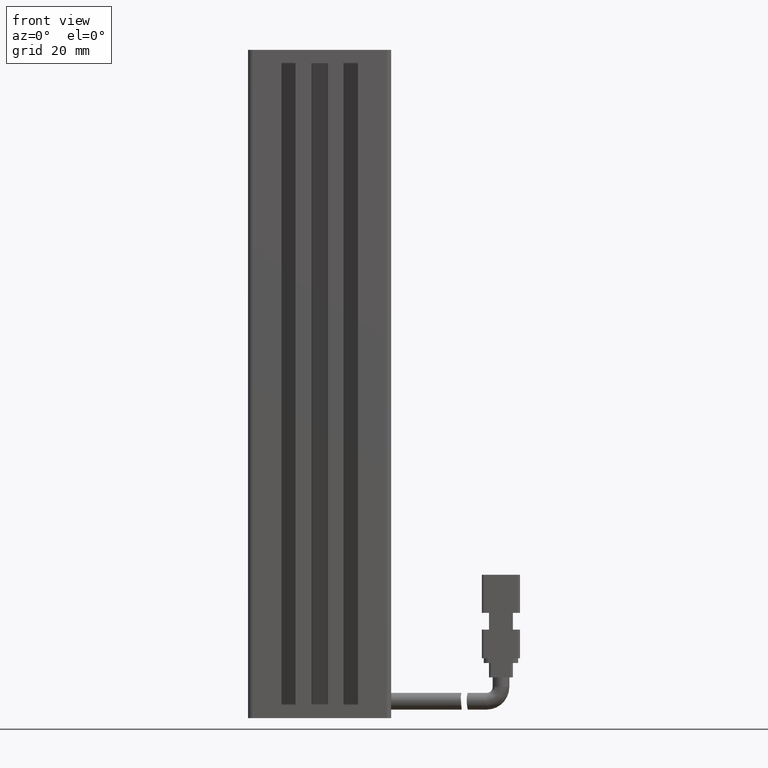
[diagram: clean part render]
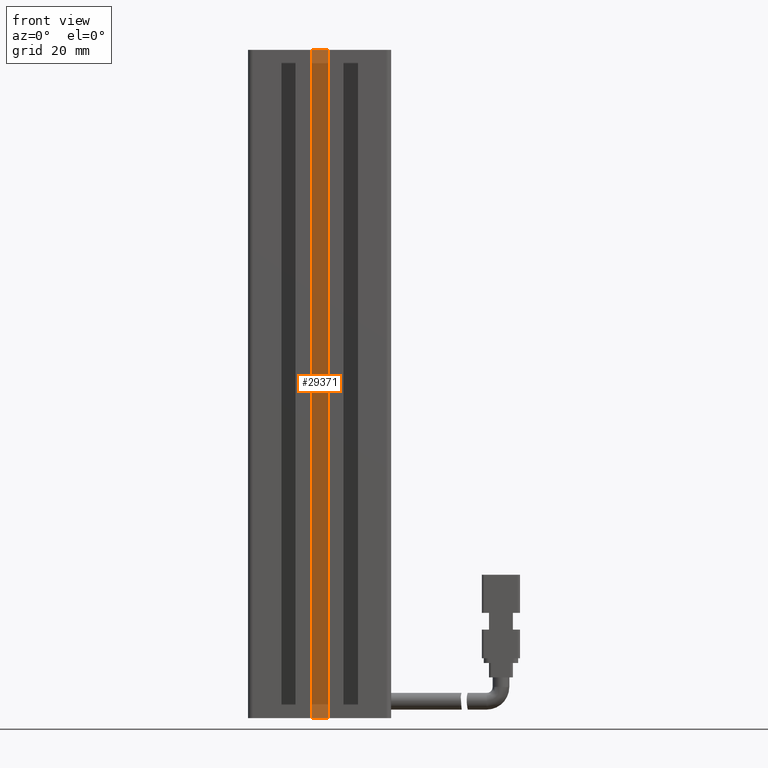
[diagram: same view with one face highlighted and labeled with its STEP entity id]
A machine part, front view. The second image highlights one B-rep face of the part: STEP entity #29371.
In plain terms, the highlighted planar face has unit normal (0, 1, 0).
Its self-contained STEP definition (entity closure, byte-faithful):
#233 = LINE ( 'NONE', #5409, #30865 ) ;
#376 = EDGE_CURVE ( 'NONE', #23044, #26277, #31807, .T. ) ;
#747 = CARTESIAN_POINT ( 'NONE',  ( 39.17537974683542500, 15.49594479660386700, -45.00000000000000000 ) ) ;
#762 = FACE_OUTER_BOUND ( 'NONE', #14723, .T. ) ;
#2207 = EDGE_CURVE ( 'NONE', #23044, #22818, #23601, .T. ) ;
#2642 = CARTESIAN_POINT ( 'NONE',  ( 42.67537974683542500, 15.49594479660386700, -45.00000000000000000 ) ) ;
#3263 = ORIENTED_EDGE ( 'NONE', *, *, #2207, .T. ) ;
#5409 = CARTESIAN_POINT ( 'NONE',  ( 40.92537974683542500, 15.49594479660386700, -45.00000000000000000 ) ) ;
#6335 = VECTOR ( 'NONE', #30303, 1000.000000000000000 ) ;
#8083 = EDGE_CURVE ( 'NONE', #26277, #15431, #233, .T. ) ;
#8577 = ORIENTED_EDGE ( 'NONE', *, *, #376, .F. ) ;
#8767 = CARTESIAN_POINT ( 'NONE',  ( 40.92537974683542500, 15.49594479660386700, -45.00000000000000000 ) ) ;
#9637 = DIRECTION ( 'NONE',  ( 0.0000000000000000000, -0.0000000000000000000, 1.000000000000000000 ) ) ;
#11596 = PLANE ( 'NONE',  #17767 ) ;
#11736 = DIRECTION ( 'NONE',  ( 0.0000000000000000000, -0.0000000000000000000, 1.000000000000000000 ) ) ;
#12160 = CARTESIAN_POINT ( 'NONE',  ( 42.67537974683542500, 15.49594479660386700, -185.0000000000000000 ) ) ;
#14723 = EDGE_LOOP ( 'NONE', ( #35335, #18488, #8577, #3263 ) ) ;
#15115 = VECTOR ( 'NONE', #28505, 1000.000000000000000 ) ;
#15431 = VERTEX_POINT ( 'NONE', #2642 ) ;
#17767 = AXIS2_PLACEMENT_3D ( 'NONE', #8767, #28885, #11736 ) ;
#18488 = ORIENTED_EDGE ( 'NONE', *, *, #8083, .F. ) ;
#19558 = EDGE_CURVE ( 'NONE', #15431, #22818, #21697, .T. ) ;
#21697 = LINE ( 'NONE', #27430, #6335 ) ;
#22818 = VERTEX_POINT ( 'NONE', #12160 ) ;
#23044 = VERTEX_POINT ( 'NONE', #30305 ) ;
#23601 = LINE ( 'NONE', #31260, #15115 ) ;
#24210 = CARTESIAN_POINT ( 'NONE',  ( 39.17537974683542500, 15.49594479660386700, -45.00000000000000000 ) ) ;
#24226 = VECTOR ( 'NONE', #9637, 1000.000000000000000 ) ;
#26277 = VERTEX_POINT ( 'NONE', #24210 ) ;
#27430 = CARTESIAN_POINT ( 'NONE',  ( 42.67537974683542500, 15.49594479660386700, -45.00000000000000000 ) ) ;
#28502 = DIRECTION ( 'NONE',  ( 1.000000000000000000, 0.0000000000000000000, 0.0000000000000000000 ) ) ;
#28505 = DIRECTION ( 'NONE',  ( 1.000000000000000000, 0.0000000000000000000, 0.0000000000000000000 ) ) ;
#28885 = DIRECTION ( 'NONE',  ( 0.0000000000000000000, 1.000000000000000000, 0.0000000000000000000 ) ) ;
#29371 = ADVANCED_FACE ( 'NONE', ( #762 ), #11596, .F. ) ;
#30303 = DIRECTION ( 'NONE',  ( -0.0000000000000000000, 0.0000000000000000000, -1.000000000000000000 ) ) ;
#30305 = CARTESIAN_POINT ( 'NONE',  ( 39.17537974683542500, 15.49594479660386700, -185.0000000000000000 ) ) ;
#30865 = VECTOR ( 'NONE', #28502, 1000.000000000000000 ) ;
#31260 = CARTESIAN_POINT ( 'NONE',  ( 40.92537974683542500, 15.49594479660386700, -185.0000000000000000 ) ) ;
#31807 = LINE ( 'NONE', #747, #24226 ) ;
#35335 = ORIENTED_EDGE ( 'NONE', *, *, #19558, .F. ) ;